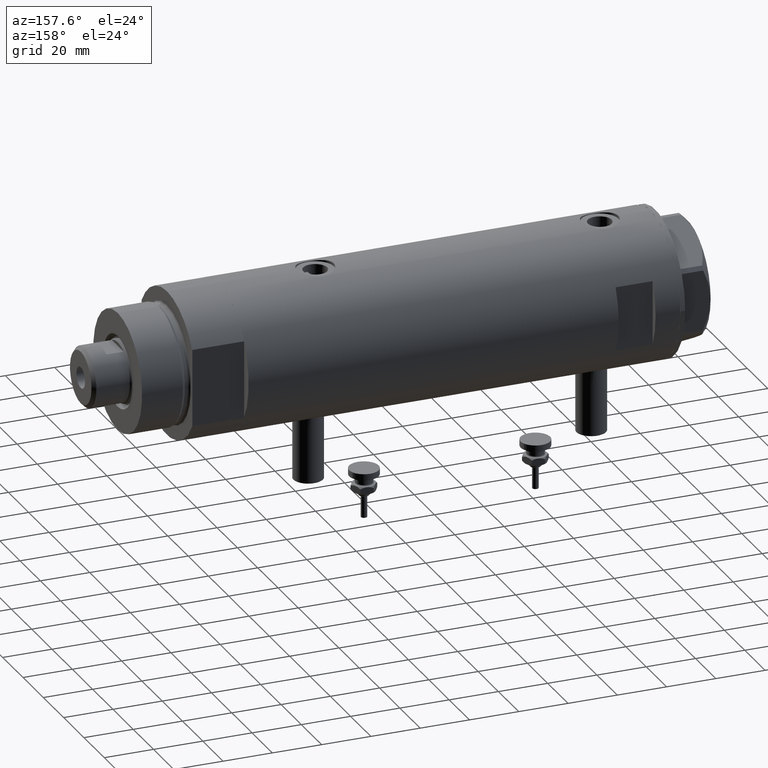
[diagram: clean part render]
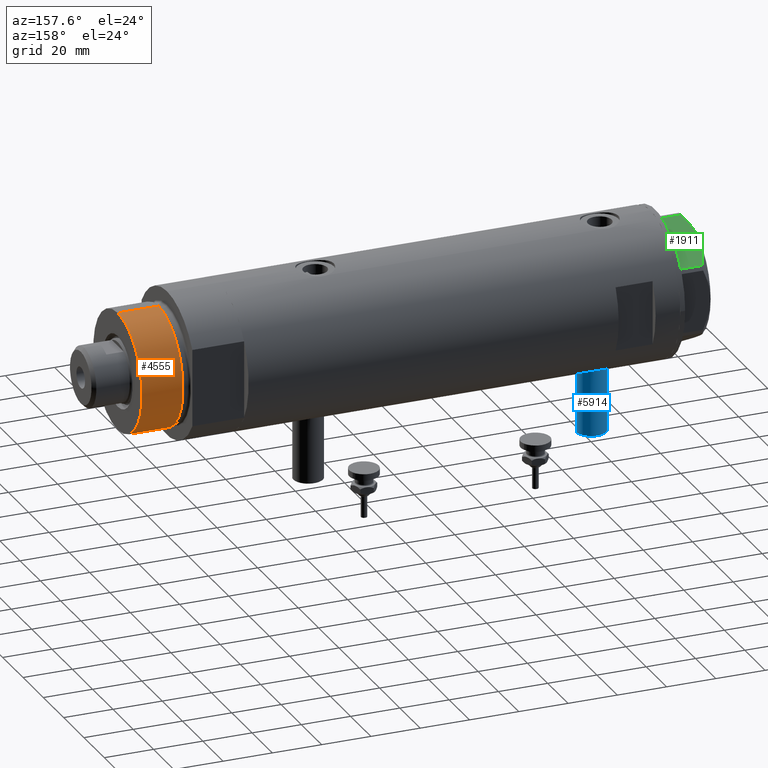
[diagram: same view with three faces highlighted in distinct colors, each labeled with its STEP entity id]
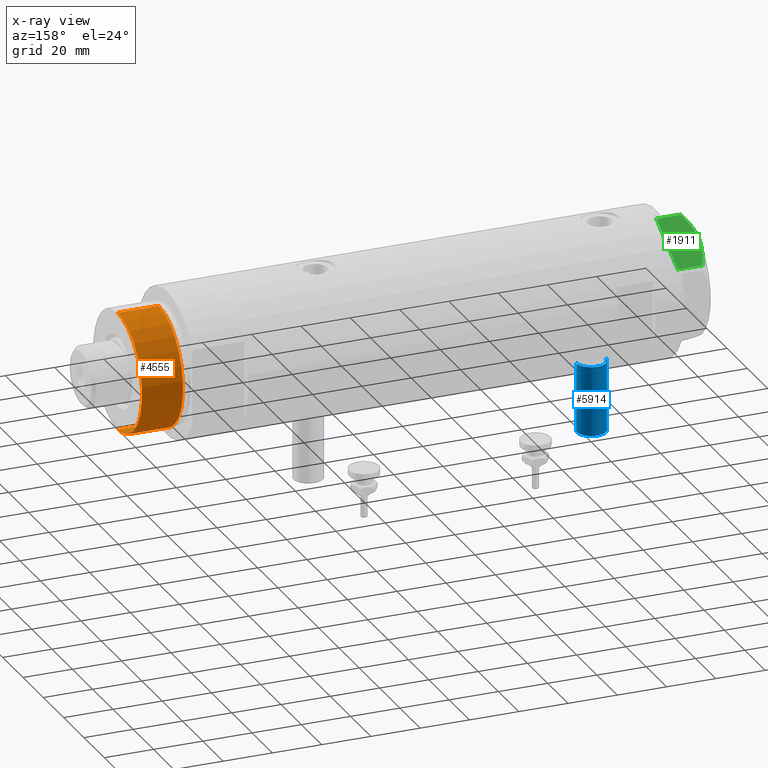
[diagram: x-ray of the same camera — body ghosted, the three highlighted faces saturated]
A machine part, auxiliary view with three faces highlighted in distinct colors.
The next image is the same camera in x-ray (body ghosted, the three faces saturated) — at least one of them is partly hidden behind the body in this view.
Their STEP definitions:

[orange] entity #4555 — the highlighted cylindrical surface (partial cylindrical patch) has radius 24 mm, axis along (-1, -0, 0).
#15 = EDGE_CURVE ( 'NONE', #5386, #4201, #5160, .T. ) ;
#320 = CARTESIAN_POINT ( 'NONE',  ( -24.00000000000000355, 0.000000000000000000, 41.00000000000000000 ) ) ;
#452 = AXIS2_PLACEMENT_3D ( 'NONE', #5728, #1250, #979 ) ;
#761 = VECTOR ( 'NONE', #5744, 1000.000000000000000 ) ;
#781 = CARTESIAN_POINT ( 'NONE',  ( 0.000000000000000000, 0.000000000000000000, 41.00000000000000000 ) ) ;
#946 = DIRECTION ( 'NONE',  ( -1.000000000000000000, 0.000000000000000000, 0.000000000000000000 ) ) ;
#979 = DIRECTION ( 'NONE',  ( 1.000000000000000000, 0.000000000000000000, 0.000000000000000000 ) ) ;
#1188 = VERTEX_POINT ( 'NONE', #3743 ) ;
#1250 = DIRECTION ( 'NONE',  ( -0.000000000000000000, -0.000000000000000000, 1.000000000000000000 ) ) ;
#1425 = ORIENTED_EDGE ( 'NONE', *, *, #15, .T. ) ;
#1708 = CIRCLE ( 'NONE', #3931, 24.00000000000000355 ) ;
#2050 = EDGE_CURVE ( 'NONE', #3909, #1188, #1708, .T. ) ;
#2151 = ORIENTED_EDGE ( 'NONE', *, *, #2175, .F. ) ;
#2175 = EDGE_CURVE ( 'NONE', #1188, #4201, #4442, .T. ) ;
#2219 = CARTESIAN_POINT ( 'NONE',  ( 0.000000000000000000, 0.000000000000000000, 41.00000000000000000 ) ) ;
#2559 = EDGE_LOOP ( 'NONE', ( #5086, #3958, #1425, #2151 ) ) ;
#2607 = DIRECTION ( 'NONE',  ( 1.000000000000000000, 0.000000000000000000, 0.000000000000000000 ) ) ;
#2622 = DIRECTION ( 'NONE',  ( -0.000000000000000000, -0.000000000000000000, -1.000000000000000000 ) ) ;
#2632 = EDGE_CURVE ( 'NONE', #3909, #5386, #3528, .T. ) ;
#2978 = AXIS2_PLACEMENT_3D ( 'NONE', #2219, #5466, #946 ) ;
#3528 = LINE ( 'NONE', #5270, #761 ) ;
#3590 = CARTESIAN_POINT ( 'NONE',  ( 24.00000000000000355, 2.939152317953648289E-15, 24.37384048104054557 ) ) ;
#3743 = CARTESIAN_POINT ( 'NONE',  ( -24.00000000000000355, 0.000000000000000000, 41.00000000000000000 ) ) ;
#3909 = VERTEX_POINT ( 'NONE', #5367 ) ;
#3931 = AXIS2_PLACEMENT_3D ( 'NONE', #781, #4896, #2607 ) ;
#3958 = ORIENTED_EDGE ( 'NONE', *, *, #2632, .T. ) ;
#4106 = CYLINDRICAL_SURFACE ( 'NONE', #2978, 24.00000000000000355 ) ;
#4201 = VERTEX_POINT ( 'NONE', #5073 ) ;
#4442 = LINE ( 'NONE', #320, #5366 ) ;
#4555 = ADVANCED_FACE ( 'NONE', ( #5064 ), #4106, .T. ) ;
#4896 = DIRECTION ( 'NONE',  ( 0.000000000000000000, 0.000000000000000000, 1.000000000000000000 ) ) ;
#5064 = FACE_OUTER_BOUND ( 'NONE', #2559, .T. ) ;
#5073 = CARTESIAN_POINT ( 'NONE',  ( -24.00000000000000355, 0.000000000000000000, 24.37384048104054557 ) ) ;
#5086 = ORIENTED_EDGE ( 'NONE', *, *, #2050, .F. ) ;
#5160 = CIRCLE ( 'NONE', #452, 24.00000000000000355 ) ;
#5270 = CARTESIAN_POINT ( 'NONE',  ( 24.00000000000000355, 2.939152317953648289E-15, 41.00000000000000000 ) ) ;
#5366 = VECTOR ( 'NONE', #2622, 1000.000000000000000 ) ;
#5367 = CARTESIAN_POINT ( 'NONE',  ( 24.00000000000000355, 2.939152317953648289E-15, 41.00000000000000000 ) ) ;
#5386 = VERTEX_POINT ( 'NONE', #3590 ) ;
#5466 = DIRECTION ( 'NONE',  ( -0.000000000000000000, -0.000000000000000000, -1.000000000000000000 ) ) ;
#5728 = CARTESIAN_POINT ( 'NONE',  ( 0.000000000000000000, 0.000000000000000000, 24.37384048104054557 ) ) ;
#5744 = DIRECTION ( 'NONE',  ( -0.000000000000000000, -0.000000000000000000, -1.000000000000000000 ) ) ;

[blue] entity #5914 — the highlighted cylindrical surface (edge-blend (fillet) strip) has radius 6 mm, axis along (0, 0, 1).
#120 = AXIS2_PLACEMENT_3D ( 'NONE', #2716, #3663, #506 ) ;
#222 = EDGE_CURVE ( 'NONE', #2436, #4645, #4576, .T. ) ;
#439 = DIRECTION ( 'NONE',  ( -1.000000000000000000, 0.000000000000000000, 0.000000000000000000 ) ) ;
#506 = DIRECTION ( 'NONE',  ( 0.000000000000000000, 0.000000000000000000, -1.000000000000000000 ) ) ;
#543 = CARTESIAN_POINT ( 'NONE',  ( -56.60000000000000142, 0.000000000000000000, 57.60000000000000142 ) ) ;
#778 = FACE_OUTER_BOUND ( 'NONE', #4097, .T. ) ;
#1171 = DIRECTION ( 'NONE',  ( 0.000000000000000000, 0.000000000000000000, 1.000000000000000000 ) ) ;
#1242 = VECTOR ( 'NONE', #3764, 1000.000000000000000 ) ;
#1387 = CARTESIAN_POINT ( 'NONE',  ( -28.30000000000000071, 7.347880794884101001E-16, 69.59999999999998010 ) ) ;
#1760 = DIRECTION ( 'NONE',  ( 0.000000000000000000, 0.000000000000000000, 1.000000000000000000 ) ) ;
#1819 = CYLINDRICAL_SURFACE ( 'NONE', #120, 5.999999999999991118 ) ;
#1833 = CARTESIAN_POINT ( 'NONE',  ( -56.60000000000000142, 7.347880794884104945E-16, 69.59999999999998010 ) ) ;
#2030 = ORIENTED_EDGE ( 'NONE', *, *, #3559, .F. ) ;
#2201 = LINE ( 'NONE', #1833, #2507 ) ;
#2436 = VERTEX_POINT ( 'NONE', #5543 ) ;
#2456 = AXIS2_PLACEMENT_3D ( 'NONE', #4833, #2997, #1171 ) ;
#2507 = VECTOR ( 'NONE', #4481, 1000.000000000000000 ) ;
#2716 = CARTESIAN_POINT ( 'NONE',  ( -56.60000000000000142, 0.000000000000000000, 63.59999999999998721 ) ) ;
#2770 = CARTESIAN_POINT ( 'NONE',  ( -28.30000000000000071, 0.000000000000000000, 63.59999999999998721 ) ) ;
#2997 = DIRECTION ( 'NONE',  ( -1.000000000000000000, 0.000000000000000000, 0.000000000000000000 ) ) ;
#3268 = VERTEX_POINT ( 'NONE', #4993 ) ;
#3271 = CIRCLE ( 'NONE', #5014, 5.999999999999991118 ) ;
#3559 = EDGE_CURVE ( 'NONE', #4645, #3268, #4656, .T. ) ;
#3663 = DIRECTION ( 'NONE',  ( 1.000000000000000000, -0.000000000000000000, -0.000000000000000000 ) ) ;
#3764 = DIRECTION ( 'NONE',  ( 1.000000000000000000, -0.000000000000000000, -0.000000000000000000 ) ) ;
#4097 = EDGE_LOOP ( 'NONE', ( #5865, #5590, #5307, #2030 ) ) ;
#4481 = DIRECTION ( 'NONE',  ( 1.000000000000000000, -0.000000000000000000, -0.000000000000000000 ) ) ;
#4557 = EDGE_CURVE ( 'NONE', #4655, #3268, #3271, .T. ) ;
#4576 = CIRCLE ( 'NONE', #2456, 5.999999999999991118 ) ;
#4645 = VERTEX_POINT ( 'NONE', #5519 ) ;
#4655 = VERTEX_POINT ( 'NONE', #1387 ) ;
#4656 = LINE ( 'NONE', #543, #1242 ) ;
#4833 = CARTESIAN_POINT ( 'NONE',  ( -56.60000000000000142, 0.000000000000000000, 63.59999999999998721 ) ) ;
#4993 = CARTESIAN_POINT ( 'NONE',  ( -28.30000000000000071, 0.000000000000000000, 57.60000000000000142 ) ) ;
#5014 = AXIS2_PLACEMENT_3D ( 'NONE', #2770, #439, #1760 ) ;
#5307 = ORIENTED_EDGE ( 'NONE', *, *, #4557, .T. ) ;
#5473 = EDGE_CURVE ( 'NONE', #2436, #4655, #2201, .T. ) ;
#5519 = CARTESIAN_POINT ( 'NONE',  ( -56.60000000000000142, 0.000000000000000000, 57.60000000000000142 ) ) ;
#5543 = CARTESIAN_POINT ( 'NONE',  ( -56.60000000000000142, 7.347880794884101001E-16, 69.59999999999998010 ) ) ;
#5590 = ORIENTED_EDGE ( 'NONE', *, *, #5473, .T. ) ;
#5865 = ORIENTED_EDGE ( 'NONE', *, *, #222, .F. ) ;
#5914 = ADVANCED_FACE ( 'NONE', ( #778 ), #1819, .T. ) ;

[green] entity #1911 — the highlighted planar face has unit normal (-0, -0.5, -0.866).
#109 = CARTESIAN_POINT ( 'NONE',  ( 13.32175508098997518, -18.86679350063487703, 13.00000000000009059 ) ) ;
#119 = CARTESIAN_POINT ( 'NONE',  ( 2.626494320835804253, -25.04170517956326236, 10.87778242614345636 ) ) ;
#166 = CARTESIAN_POINT ( 'NONE',  ( 15.11535457301044616, -17.83125835109845880, 12.70765172847700342 ) ) ;
#173 = CARTESIAN_POINT ( 'NONE',  ( 7.836767740116727943, -22.03355241838979595, 12.63731396715694544 ) ) ;
#221 = LINE ( 'NONE', #3461, #3940 ) ;
#342 = DIRECTION ( 'NONE',  ( 0.8660254037844345998, 0.5000000000000069944, 0.000000000000000000 ) ) ;
#529 = CARTESIAN_POINT ( 'NONE',  ( 11.50000000000018296, -19.91858428704203732, 13.00000000000000000 ) ) ;
#618 = CARTESIAN_POINT ( 'NONE',  ( 9.656518383329991906, -20.98291889467260773, 12.90784227772843451 ) ) ;
#813 = DIRECTION ( 'NONE',  ( -0.8660254037844345998, -0.5000000000000069944, 0.000000000000000000 ) ) ;
#819 = ORIENTED_EDGE ( 'NONE', *, *, #2747, .T. ) ;
#944 = EDGE_LOOP ( 'NONE', ( #4468, #3416, #819, #4791, #2554 ) ) ;
#1070 = CARTESIAN_POINT ( 'NONE',  ( 6.946777556903778184, -22.54738849024392877, 12.42689993760377654 ) ) ;
#1137 = CARTESIAN_POINT ( 'NONE',  ( 22.03005154776153773, -13.83905619136115561, 0.000000000000000000 ) ) ;
#1441 = CARTESIAN_POINT ( 'NONE',  ( 19.07486218897005870, -15.54523556316577171, 11.39727285399141365 ) ) ;
#1533 = CARTESIAN_POINT ( 'NONE',  ( 17.77001848220202618, -16.29858742851869735, 11.89212886775844780 ) ) ;
#1880 = FACE_OUTER_BOUND ( 'NONE', #944, .T. ) ;
#1911 = ADVANCED_FACE ( 'NONE', ( #1880 ), #4934, .F. ) ;
#1991 = CARTESIAN_POINT ( 'NONE',  ( 17.32831362639728923, -16.55360584591992890, 12.04068176582933525 ) ) ;
#1997 = CARTESIAN_POINT ( 'NONE',  ( 10.58093321976977030, -20.44920774001120023, 12.98168640760949799 ) ) ;
#2012 = VECTOR ( 'NONE', #342, 999.9999999999998863 ) ;
#2136 = DIRECTION ( 'NONE',  ( 0.000000000000000000, 0.000000000000000000, 1.000000000000000000 ) ) ;
#2242 = VERTEX_POINT ( 'NONE', #5374 ) ;
#2381 = CARTESIAN_POINT ( 'NONE',  ( 0.9699484522386113694, -25.99811238272281955, 9.983800287807545359 ) ) ;
#2554 = ORIENTED_EDGE ( 'NONE', *, *, #5113, .F. ) ;
#2747 = EDGE_CURVE ( 'NONE', #5311, #3623, #4970, .T. ) ;
#2824 = CARTESIAN_POINT ( 'NONE',  ( 21.20080365460329475, -14.31782268570100491, 10.43131750950939107 ) ) ;
#2859 = AXIS2_PLACEMENT_3D ( 'NONE', #4065, #5797, #813 ) ;
#3115 = EDGE_CURVE ( 'NONE', #4759, #5311, #221, .T. ) ;
#3389 = CARTESIAN_POINT ( 'NONE',  ( 11.04134848610952879, -20.18338686205092358, 13.00000000000009059 ) ) ;
#3416 = ORIENTED_EDGE ( 'NONE', *, *, #3115, .T. ) ;
#3432 = CARTESIAN_POINT ( 'NONE',  ( 11.50000000000018296, -19.91858428704203732, 13.00000000000000000 ) ) ;
#3461 = CARTESIAN_POINT ( 'NONE',  ( 0.9699484522387532559, -25.99811238272273428, 13.00000000000000000 ) ) ;
#3462 = CARTESIAN_POINT ( 'NONE',  ( 0.9699484522387533669, -25.99811238272273428, 0.000000000000000000 ) ) ;
#3564 = VECTOR ( 'NONE', #2136, 1000.000000000000000 ) ;
#3623 = VERTEX_POINT ( 'NONE', #1137 ) ;
#3688 = EDGE_CURVE ( 'NONE', #3623, #2242, #3914, .T. ) ;
#3738 = CARTESIAN_POINT ( 'NONE',  ( 18.64279229058406173, -15.79469123530766517, 11.57055225522972286 ) ) ;
#3746 = CARTESIAN_POINT ( 'NONE',  ( 0.9699484522386113694, -25.99811238272281955, 9.983800287807545359 ) ) ;
#3878 = CARTESIAN_POINT ( 'NONE',  ( 4.320186229910045306, -24.06385169993492568, 11.62937486882610649 ) ) ;
#3914 = LINE ( 'NONE', #5729, #3564 ) ;
#3940 = VECTOR ( 'NONE', #4866, 1000.000000000000000 ) ;
#4065 = CARTESIAN_POINT ( 'NONE',  ( 1.854543075583504180E-13, -26.55811238272274366, 13.00000000000000000 ) ) ;
#4189 = CARTESIAN_POINT ( 'NONE',  ( 22.03005154776154129, -13.83905619136115384, 9.983800287807621743 ) ) ;
#4468 = ORIENTED_EDGE ( 'NONE', *, *, #4770, .F. ) ;
#4732 = CARTESIAN_POINT ( 'NONE',  ( 9.197898616903064095, -21.24770314027487927, 12.85271263895580240 ) ) ;
#4753 = CARTESIAN_POINT ( 'NONE',  ( 20.35958612119338085, -14.80349985506226673, 10.84420102443838552 ) ) ;
#4759 = VERTEX_POINT ( 'NONE', #3746 ) ;
#4770 = EDGE_CURVE ( 'NONE', #4759, #5227, #5398, .T. ) ;
#4791 = ORIENTED_EDGE ( 'NONE', *, *, #3688, .T. ) ;
#4866 = DIRECTION ( 'NONE',  ( 0.000000000000000000, 0.000000000000000000, -1.000000000000000000 ) ) ;
#4931 = B_SPLINE_CURVE_WITH_KNOTS ( 'NONE', 3,
 ( #5209, #109, #166, #1991, #1533, #3738, #1441, #4753, #2824, #4189 ),
 .UNSPECIFIED., .F., .F.,
 ( 4, 2, 2, 2, 4 ),
 ( 0.01376519981810312224, 0.01998941321701590279, 0.02154546656674409533, 0.02310151991647228786, 0.02621362661592867294 ),
 .UNSPECIFIED. ) ;
#4934 = PLANE ( 'NONE',  #2859 ) ;
#4970 = LINE ( 'NONE', #5869, #2012 ) ;
#5113 = EDGE_CURVE ( 'NONE', #5227, #2242, #4931, .T. ) ;
#5209 = CARTESIAN_POINT ( 'NONE',  ( 11.50000000000018296, -19.91858428704203732, 13.00000000000000000 ) ) ;
#5227 = VERTEX_POINT ( 'NONE', #3432 ) ;
#5311 = VERTEX_POINT ( 'NONE', #3462 ) ;
#5374 = CARTESIAN_POINT ( 'NONE',  ( 22.03005154776154129, -13.83905619136115384, 9.983800287807621743 ) ) ;
#5398 = B_SPLINE_CURVE_WITH_KNOTS ( 'NONE', 3,
 ( #2381, #119, #3878, #1070, #173, #4732, #618, #1997, #3389, #529 ),
 .UNSPECIFIED., .F., .F.,
 ( 4, 2, 2, 2, 4 ),
 ( 0.001228959670438509785, 0.007497079744270810156, 0.01063113978118696706, 0.01219816979964504465, 0.01376519981810312224 ),
 .UNSPECIFIED. ) ;
#5729 = CARTESIAN_POINT ( 'NONE',  ( 22.03005154776153773, -13.83905619136115739, 13.00000000000000000 ) ) ;
#5797 = DIRECTION ( 'NONE',  ( -0.5000000000000069944, 0.8660254037844345998, 0.000000000000000000 ) ) ;
#5869 = CARTESIAN_POINT ( 'NONE',  ( 1.854543075583504180E-13, -26.55811238272274366, 0.000000000000000000 ) ) ;